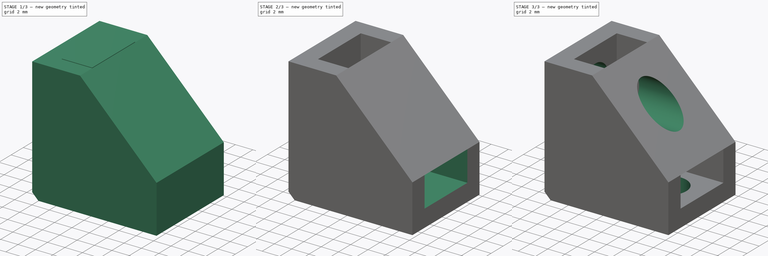
[diagram: build sequence overview — one tinted view per stage of 3, left to right]
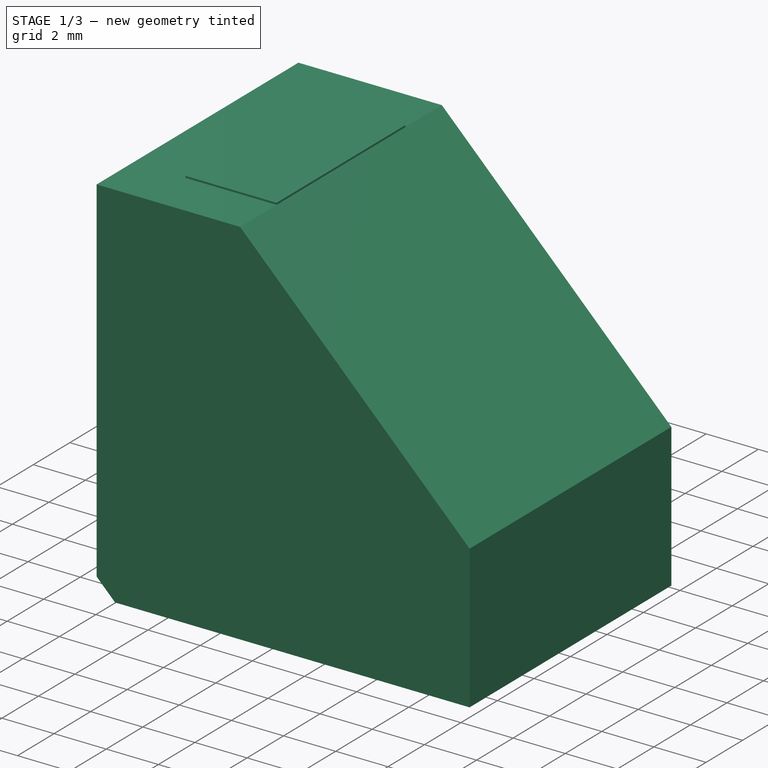
[diagram: stage 1 of 3 — iso view after this stage's code; geometry added in this stage tinted green]
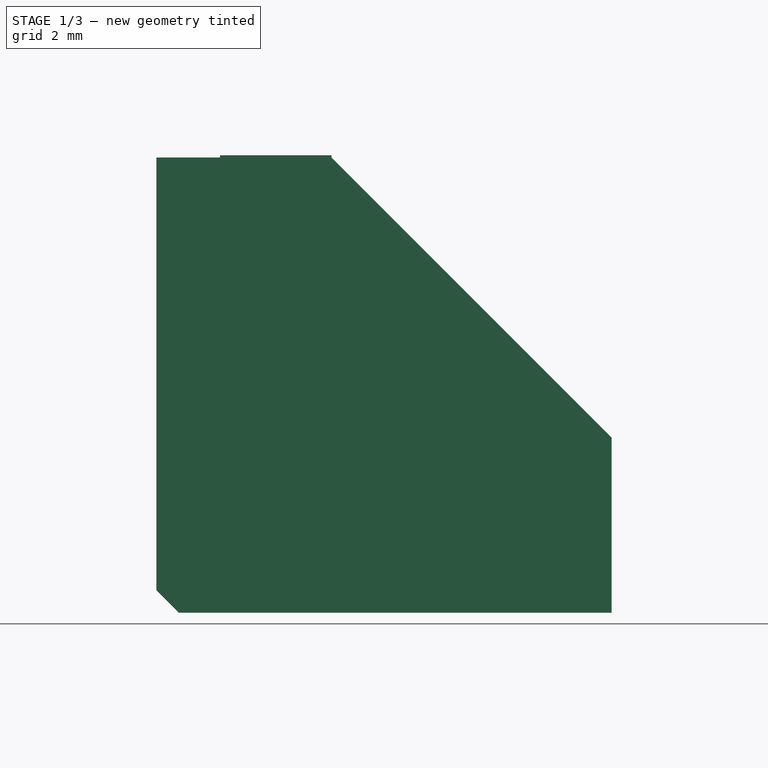
[diagram: stage 1 of 3 — front view after this stage's code; geometry added in this stage tinted green]
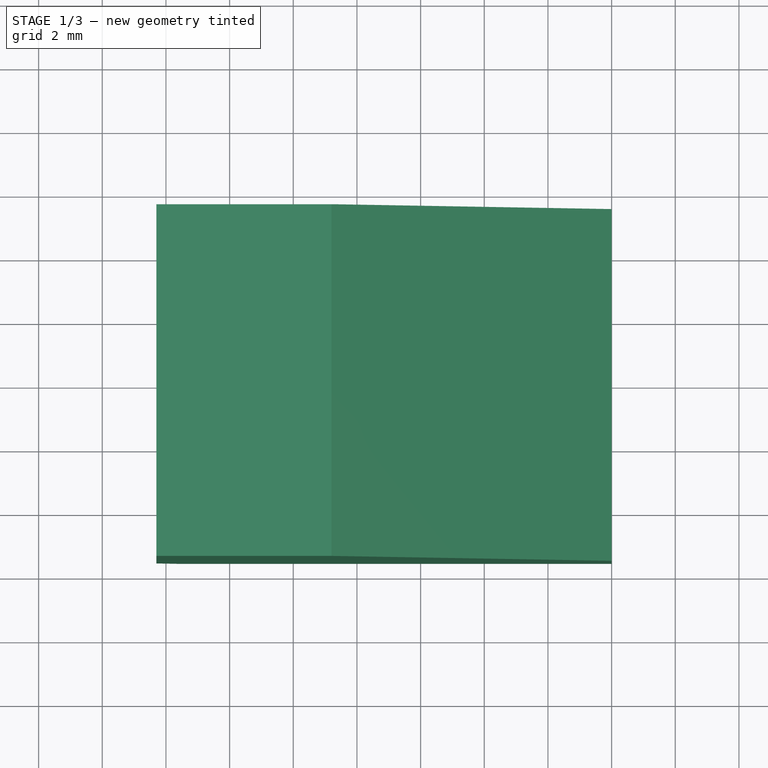
[diagram: stage 1 of 3 — top view after this stage's code; geometry added in this stage tinted green]
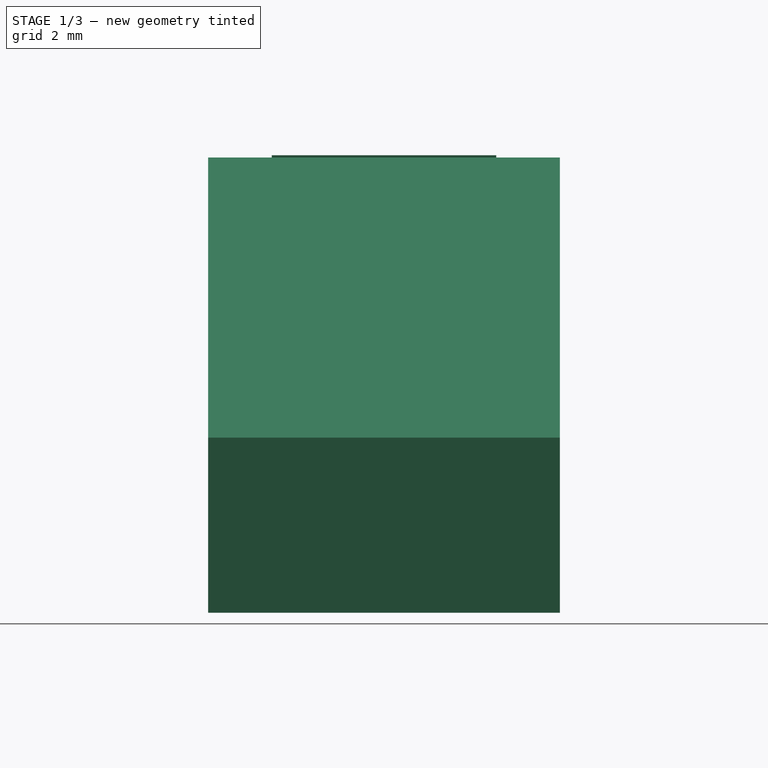
[diagram: stage 1 of 3 — right view after this stage's code; geometry added in this stage tinted green]
FCSTD DOCUMENT  (FreeCAD 0.15R4671 (Git))
Label: Fixing Block Table Z Axis
License: All rights reserved
LicenseURL: http://en.wikipedia.org/wiki/All_rights_reserved
objects: Sketcher::SketchObject×5, PartDesign::Pad×3, Part::Cut×2, PartDesign::Pocket×2
note: 17 computed .brp shape members not serialized (recipe doc carries the construction recipe); baked Part::Feature solids carry a one-line shape summary decoded from their .brp

FEATURE [Sketcher::SketchObject] Sketch001
  Placement = pos=(-6.55,0,0) rot=(0.57735,0.57735,0.57735;2.0944rad)
  sketch-geometry (10):
    g0: LineSegment StartX=0 StartY=2.47968 StartZ=0 EndX=3.525 EndY=4.51484 EndZ=0
    g1: LineSegment StartX=3.525 StartY=4.51484 StartZ=0 EndX=3.525 EndY=8.58516 EndZ=0
    g2: LineSegment [constr] StartX=3.525 StartY=8.58516 StartZ=0 EndX=0 EndY=10.6203 EndZ=0
    g3: LineSegment [constr] StartX=0 StartY=10.6203 StartZ=0 EndX=-3.525 EndY=8.58516 EndZ=0
    g4: LineSegment StartX=-3.525 StartY=8.58516 StartZ=0 EndX=-3.525 EndY=4.51484 EndZ=0
    g5: LineSegment StartX=-3.525 StartY=4.51484 StartZ=0 EndX=0 EndY=2.47968 EndZ=0
    g6: Circle [constr] CenterX=0 CenterY=6.55 CenterZ=0 NormalX=0 NormalY=0 NormalZ=1 Radius=4.07032
    g7: LineSegment StartX=-3.525 StartY=8.58516 StartZ=0 EndX=-3.525 EndY=10.6203 EndZ=0
    g8: LineSegment StartX=-3.525 StartY=10.6203 StartZ=0 EndX=3.525 EndY=10.6203 EndZ=0
    g9: LineSegment StartX=3.525 StartY=10.6203 StartZ=0 EndX=3.525 EndY=8.58516 EndZ=0
  constraints (25):
    c: Coincident(g0,g1)
    c: Coincident(g1,g2)
    c: Coincident(g2,g3)
    c: Coincident(g3,g4)
    c: Coincident(g4,g5)
    c: Coincident(g5,g0)
    c: Equal(g0, g1-g5) x5
    c: PointOnObject(g0,g6)
    c: PointOnObject(g1,g6)
    c: PointOnObject(g2,g6)
    c: PointOnObject(g3,g6)
    c: PointOnObject(g4,g6)
    c: PointOnObject(g5,g6)
    c: Vertical(g4)
    c: PointOnObject(g6,g-2)
    c: Distance(g4,g0) = 7.05
    c: DistanceY(g-1,g6) = 6.55
    c: Vertical(g7)
    c: Coincident(g7,g8)
    c: Horizontal(g8)
    c: Coincident(g8,g9)
    c: Vertical(g9)
    c: Coincident(g1,g9)
    c: Coincident(g3,g7)
    c: PointOnObject(g2,g8)
FEATURE [PartDesign::Pad] Pad001
  Length = 3.5
  Length2 = 100
  Midplane = true
  Placement = pos=(-6.55,0,0) rot=(0.57735,0.57735,0.57735;2.0944rad)
  Sketch = -> Sketch001
  Type = 0
FEATURE [Sketcher::SketchObject] Sketch002
  Placement = pos=(0,0,0) rot=(-1,0,0;4.71239rad)
  sketch-geometry (8):
    g0: LineSegment StartX=-10.3 StartY=10.55 StartZ=0 EndX=-10.3 EndY=-3.04289 EndZ=0
    g1: LineSegment StartX=-10.3 StartY=-3.04289 StartZ=0 EndX=-9.59289 EndY=-3.75 EndZ=0
    g2: LineSegment StartX=-9.59289 StartY=-3.75 StartZ=0 EndX=4 EndY=-3.75 EndZ=0
    g3: LineSegment StartX=4 StartY=-3.75 StartZ=0 EndX=4 EndY=1.75 EndZ=0
    g4: LineSegment StartX=4 StartY=1.75 StartZ=0 EndX=-4.8 EndY=10.55 EndZ=0
    g5: LineSegment StartX=-4.8 StartY=10.55 StartZ=0 EndX=-10.3 EndY=10.55 EndZ=0
    g6: LineSegment [constr] StartX=-10.3 StartY=-3.04289 StartZ=0 EndX=4 EndY=-3.04289 EndZ=0
    g7: LineSegment [constr] StartX=-9.59289 StartY=-3.75 StartZ=0 EndX=-9.59289 EndY=10.55 EndZ=0
  constraints (25):
    c: Vertical(g0)
    c: Coincident(g0,g1)
    c: Coincident(g1,g2)
    c: Horizontal(g2)
    c: Coincident(g2,g3)
    c: Vertical(g3)
    c: Coincident(g3,g4)
    c: Coincident(g4,g5)
    c: Coincident(g5,g0)
    c: Horizontal(g5)
    c: Equal(g5,g3)
    c: Parallel(g1,g4)
    c: Distance(g1) = 1
    c: Angle(g4,g3) = 2.35619
    c: DistanceX(g2) = 4
    c: DistanceY(g2) = -3.75
    c: DistanceX(g5) = -5.5
    c: Coincident(g6,g0)
    c: PointOnObject(g6,g3)
    c: Horizontal(g6)
    c: Coincident(g7,g1)
    c: PointOnObject(g7,g5)
    c: Vertical(g7)
    c: Equal(g6,g7)
    c: DistanceX(g-1,g0) = -10.3
FEATURE [PartDesign::Pad] Pad002
  Length = 11.05
  Length2 = 100
  Midplane = true
  Placement = pos=(0,0,0) rot=(-1,0,0;4.71239rad)
  Sketch = -> Sketch002
  Type = 0
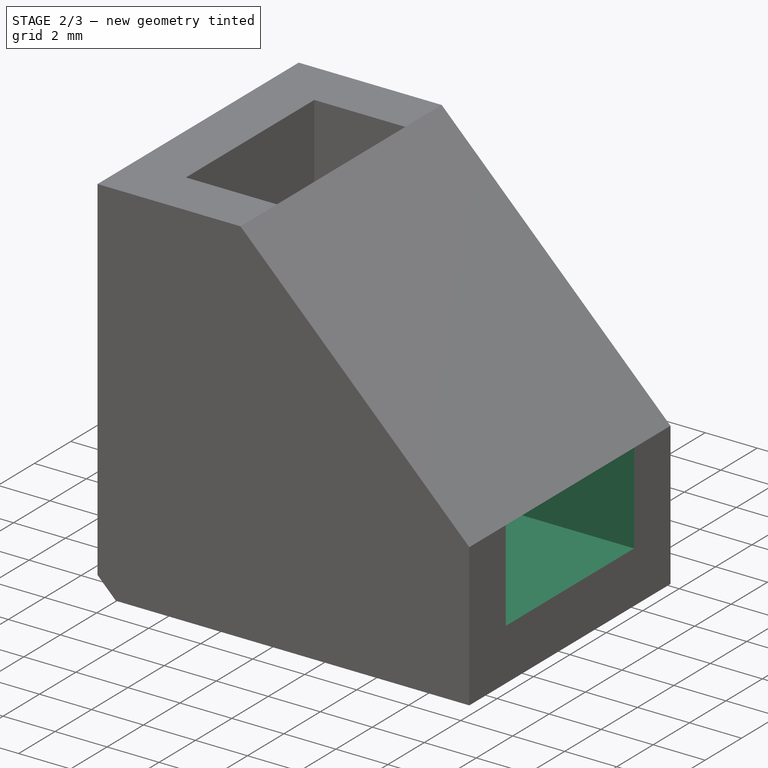
[diagram: stage 2 of 3 — iso view after this stage's code; geometry added in this stage tinted green]
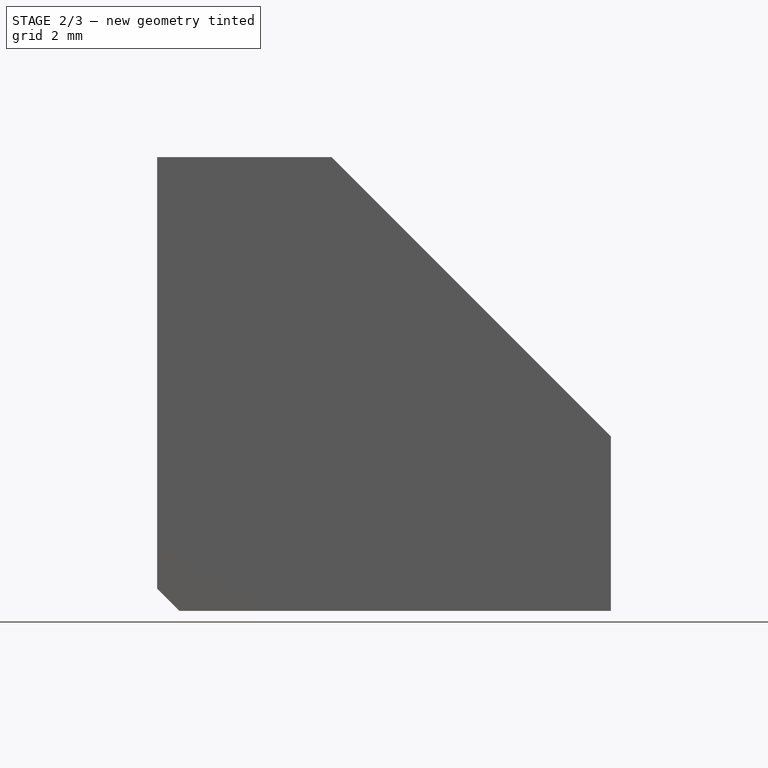
[diagram: stage 2 of 3 — front view after this stage's code; geometry added in this stage tinted green]
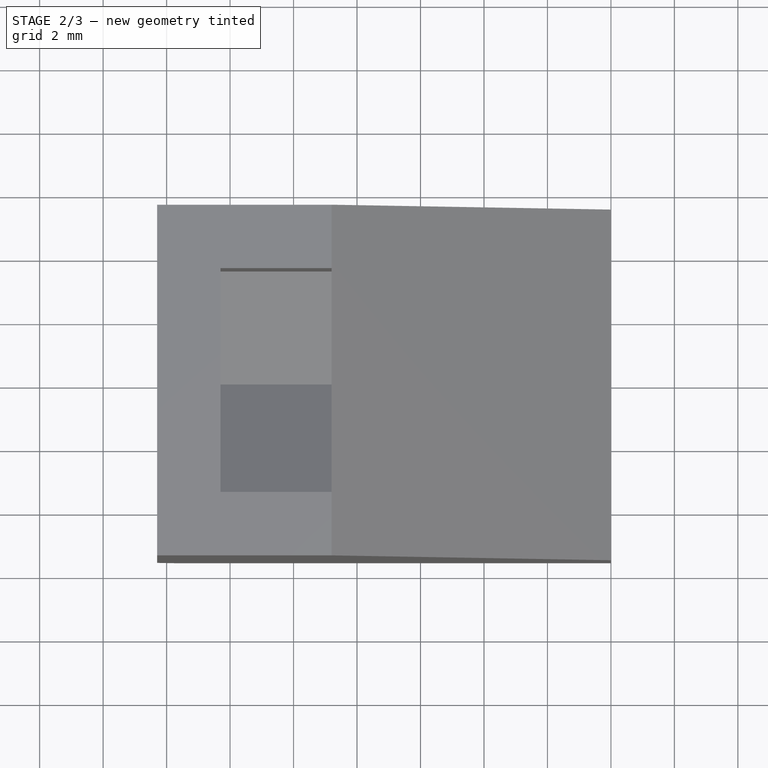
[diagram: stage 2 of 3 — top view after this stage's code; geometry added in this stage tinted green]
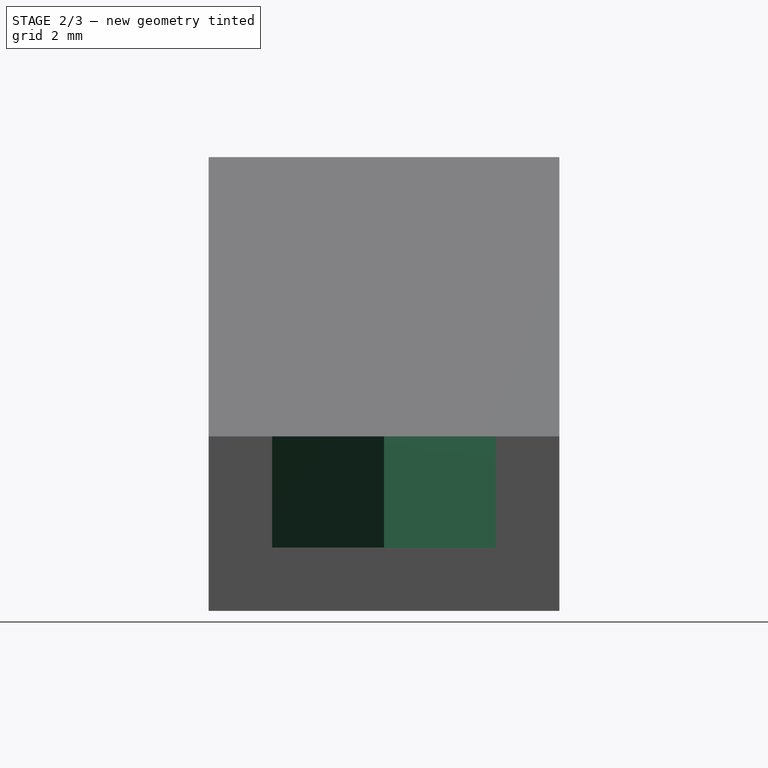
[diagram: stage 2 of 3 — right view after this stage's code; geometry added in this stage tinted green]
FEATURE [Sketcher::SketchObject] Sketch
  sketch-geometry (10):
    g0: LineSegment [constr] StartX=4.07032 StartY=-1e-12 StartZ=0 EndX=2.03516 EndY=3.525 EndZ=0
    g1: LineSegment StartX=2.03516 StartY=3.525 StartZ=0 EndX=-2.03516 EndY=3.525 EndZ=0
    g2: LineSegment StartX=-2.03516 StartY=3.525 StartZ=0 EndX=-4.07032 EndY=-1e-12 EndZ=0
    g3: LineSegment StartX=-4.07032 StartY=-1e-12 StartZ=0 EndX=-2.03516 EndY=-3.525 EndZ=0
    g4: LineSegment StartX=-2.03516 StartY=-3.525 StartZ=0 EndX=2.03516 EndY=-3.525 EndZ=0
    g5: LineSegment [constr] StartX=2.03516 StartY=-3.525 StartZ=0 EndX=4.07032 EndY=-1e-12 EndZ=0
    g6: Circle [constr] CenterX=0 CenterY=0 CenterZ=0 NormalX=0 NormalY=0 NormalZ=1 Radius=4.07032
    g7: LineSegment StartX=2.03516 StartY=3.525 StartZ=0 EndX=4.07032 EndY=3.525 EndZ=0
    g8: LineSegment StartX=4.07032 StartY=3.525 StartZ=0 EndX=4.07032 EndY=-3.525 EndZ=0
    g9: LineSegment StartX=4.07032 StartY=-3.525 StartZ=0 EndX=2.03516 EndY=-3.525 EndZ=0
  constraints (24):
    c: Coincident(g0,g1)
    c: Coincident(g1,g2)
    c: Coincident(g2,g3)
    c: Coincident(g3,g4)
    c: Coincident(g4,g5)
    c: Coincident(g5,g0)
    c: Equal(g0, g1-g5) x5
    c: PointOnObject(g0,g6)
    c: PointOnObject(g1,g6)
    c: PointOnObject(g2,g6)
    c: PointOnObject(g3,g6)
    c: PointOnObject(g4,g6)
    c: PointOnObject(g5,g6)
    c: Horizontal(g4)
    c: Coincident(g6,g-1)
    c: Distance(g4,g0) = 7.05
    c: Horizontal(g7)
    c: Coincident(g7,g8)
    c: Vertical(g8)
    c: Coincident(g8,g9)
    c: Horizontal(g9)
    c: Coincident(g4,g9)
    c: Coincident(g0,g7)
    c: PointOnObject(g0,g8)
FEATURE [PartDesign::Pad] Pad
  Length = 3.5
  Length2 = 100
  Midplane = true
  Sketch = -> Sketch
  Type = 0
FEATURE [Part::Cut] Cut
  Base = -> Pad002
  Tool = -> Pad001
FEATURE [Part::Cut] Cut001
  Base = -> Cut
  Tool = -> Pad
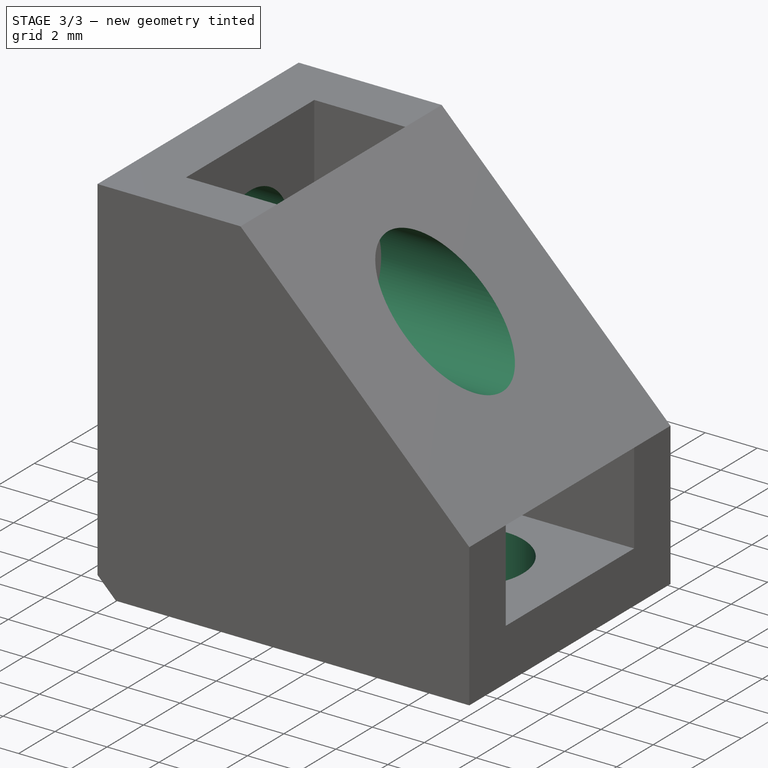
[diagram: stage 3 of 3 — iso view after this stage's code; geometry added in this stage tinted green]
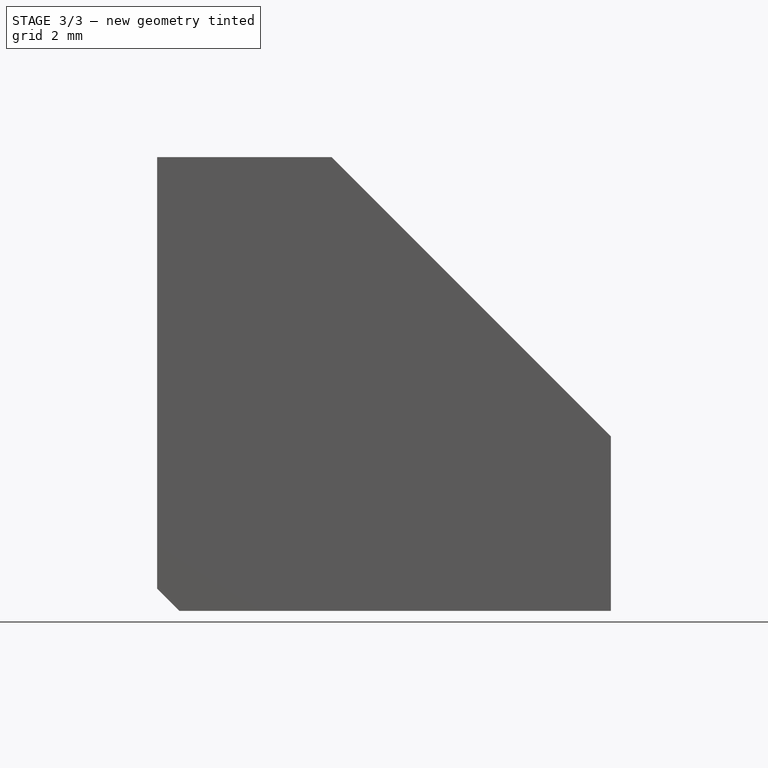
[diagram: stage 3 of 3 — front view after this stage's code; geometry added in this stage tinted green]
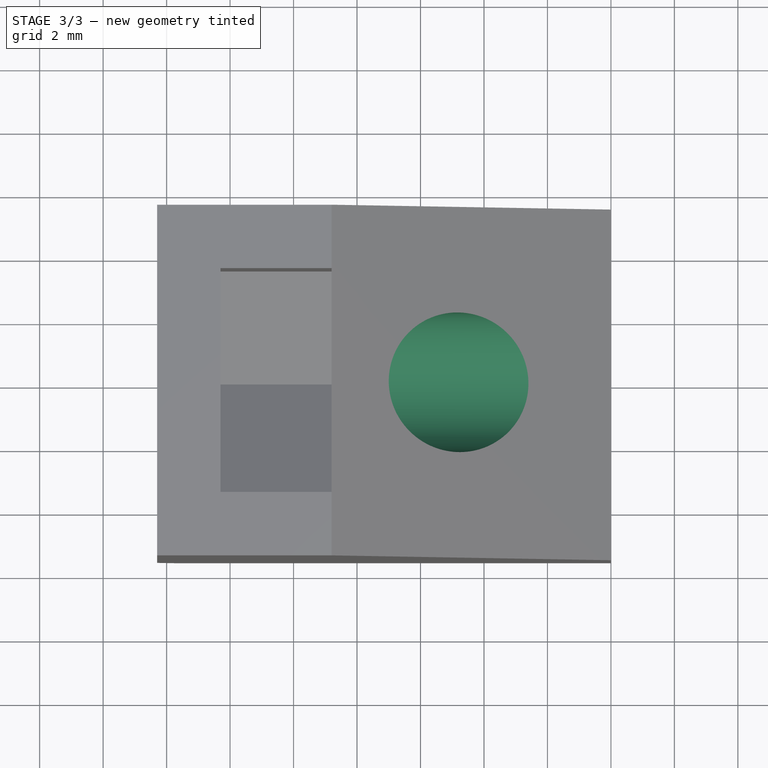
[diagram: stage 3 of 3 — top view after this stage's code; geometry added in this stage tinted green]
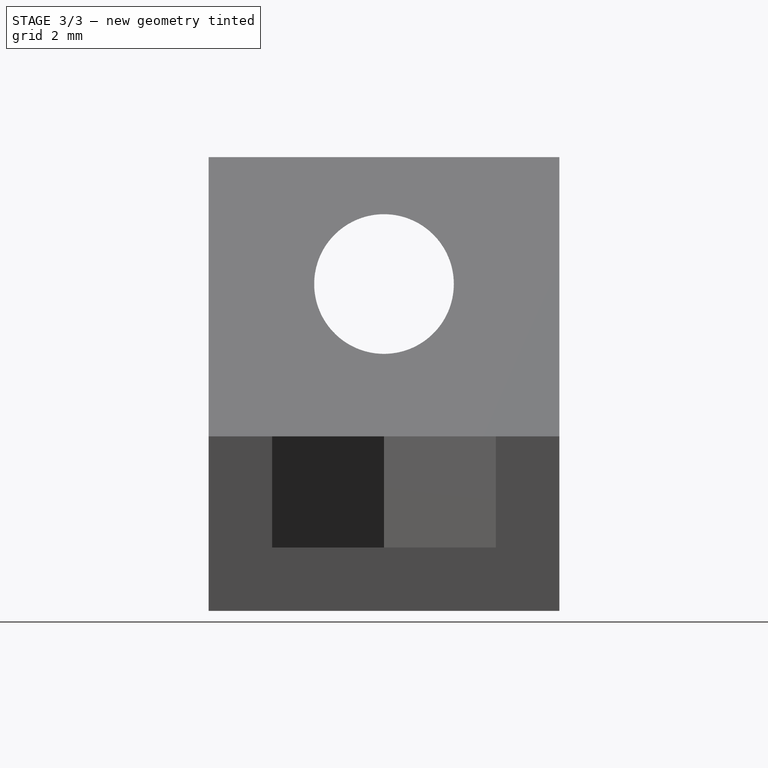
[diagram: stage 3 of 3 — right view after this stage's code; geometry added in this stage tinted green]
FEATURE [Sketcher::SketchObject] Sketch003
  ExternalGeometry = -> [Cut001]
  Placement = pos=(-8.3,0,0) rot=(0.57735,0.57735,0.57735;2.0944rad)
  Support = -> Cut001 [Face8]
  sketch-geometry (8):
    g0: LineSegment [constr] StartX=0 StartY=2.47968 StartZ=0 EndX=3.525 EndY=4.51484 EndZ=0
    g1: LineSegment [constr] StartX=3.525 StartY=4.51484 StartZ=0 EndX=3.525 EndY=8.58516 EndZ=0
    g2: LineSegment [constr] StartX=3.525 StartY=8.58516 StartZ=0 EndX=0 EndY=10.6203 EndZ=0
    g3: LineSegment [constr] StartX=0 StartY=10.6203 StartZ=0 EndX=-3.525 EndY=8.58516 EndZ=0
    g4: LineSegment [constr] StartX=-3.525 StartY=8.58516 StartZ=0 EndX=-3.525 EndY=4.51484 EndZ=0
    g5: LineSegment [constr] StartX=-3.525 StartY=4.51484 StartZ=0 EndX=0 EndY=2.47968 EndZ=0
    g6: Circle [constr] CenterX=0 CenterY=6.55 CenterZ=0 NormalX=0 NormalY=0 NormalZ=1 Radius=4.07032
    g7: Circle CenterX=0 CenterY=6.55 CenterZ=0 NormalX=0 NormalY=0 NormalZ=1 Radius=2.2
  constraints (18):
    c: Coincident(g0,g1)
    c: Coincident(g1,g2)
    c: Coincident(g2,g3)
    c: Coincident(g3,g4)
    c: Coincident(g4,g5)
    c: Coincident(g5,g0)
    c: Equal(g0, g1-g5) x5
    c: PointOnObject(g0,g6)
    c: PointOnObject(g1,g6)
    c: PointOnObject(g2,g6)
    c: PointOnObject(g3,g6)
    c: PointOnObject(g4,g6)
    c: PointOnObject(g5,g6)
    c: Vertical(g4)
    c: PointOnObject(g6,g-2)
    c: Coincident(g-3,g0)
    c: Coincident(g7,g6)
    c: Radius(g7) = 2.2
FEATURE [PartDesign::Pocket] Pocket
  Length = 5
  Midplane = true
  Sketch = -> Sketch003
  Type = 1
FEATURE [Sketcher::SketchObject] Sketch004
  ExternalGeometry = -> [Pocket]
  Placement = pos=(0,0,-1.75) rot=(0,0,1;0rad)
  Support = -> Pocket [Face21]
  sketch-geometry (8):
    g0: LineSegment [constr] StartX=-4.07032 StartY=5e-12 StartZ=0 EndX=-2.03516 EndY=-3.525 EndZ=0
    g1: LineSegment [constr] StartX=-2.03516 StartY=-3.525 StartZ=0 EndX=2.03516 EndY=-3.525 EndZ=0
    g2: LineSegment [constr] StartX=2.03516 StartY=-3.525 StartZ=0 EndX=4.07032 EndY=-1e-12 EndZ=0
    g3: LineSegment [constr] StartX=4.07032 StartY=-1e-12 StartZ=0 EndX=2.03516 EndY=3.525 EndZ=0
    g4: LineSegment [constr] StartX=2.03516 StartY=3.525 StartZ=0 EndX=-2.03516 EndY=3.525 EndZ=0
    g5: LineSegment [constr] StartX=-2.03516 StartY=3.525 StartZ=0 EndX=-4.07032 EndY=5e-12 EndZ=0
    g6: Circle [constr] CenterX=-1e-12 CenterY=0 CenterZ=0 NormalX=0 NormalY=0 NormalZ=1 Radius=4.07032
    g7: Circle CenterX=0 CenterY=0 CenterZ=0 NormalX=0 NormalY=0 NormalZ=1 Radius=2.2
  constraints (18):
    c: Coincident(g0,g1)
    c: Coincident(g1,g2)
    c: Coincident(g2,g3)
    c: Coincident(g3,g4)
    c: Coincident(g4,g5)
    c: Coincident(g5,g0)
    c: Equal(g0, g1-g5) x5
    c: PointOnObject(g0,g6)
    c: PointOnObject(g1,g6)
    c: PointOnObject(g2,g6)
    c: PointOnObject(g3,g6)
    c: PointOnObject(g4,g6)
    c: PointOnObject(g5,g6)
    c: Horizontal(g4)
    c: PointOnObject(g6,g-1)
    c: Coincident(g4,g-4)
    c: Coincident(g7,g-1)
    c: Radius(g7) = 2.2
FEATURE [PartDesign::Pocket] Pocket001
  Length = 5
  Sketch = -> Sketch004
  Type = 1
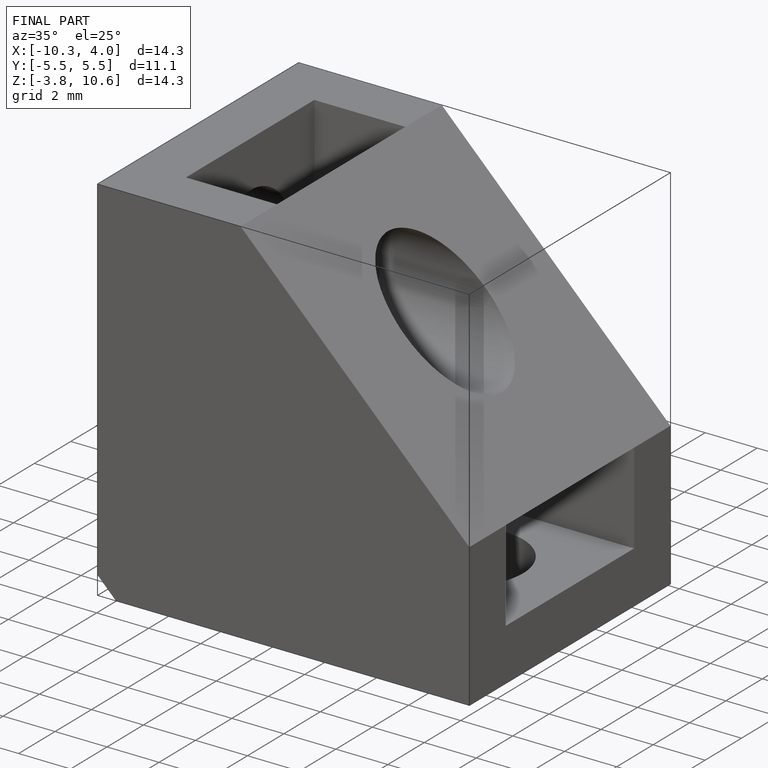
[diagram: finished part — iso view with bounding-box wireframe]
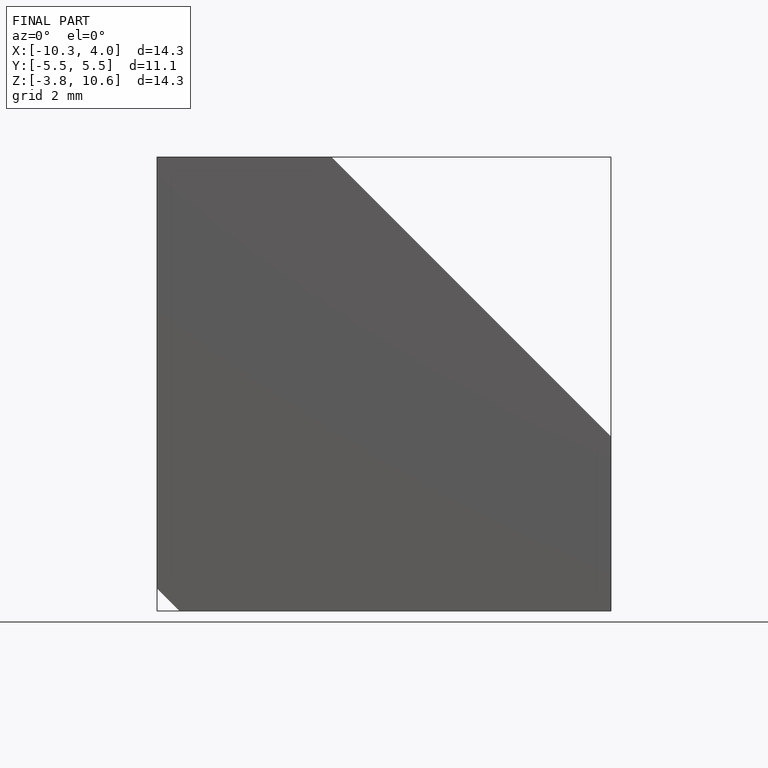
[diagram: finished part — front view with bounding-box wireframe]
